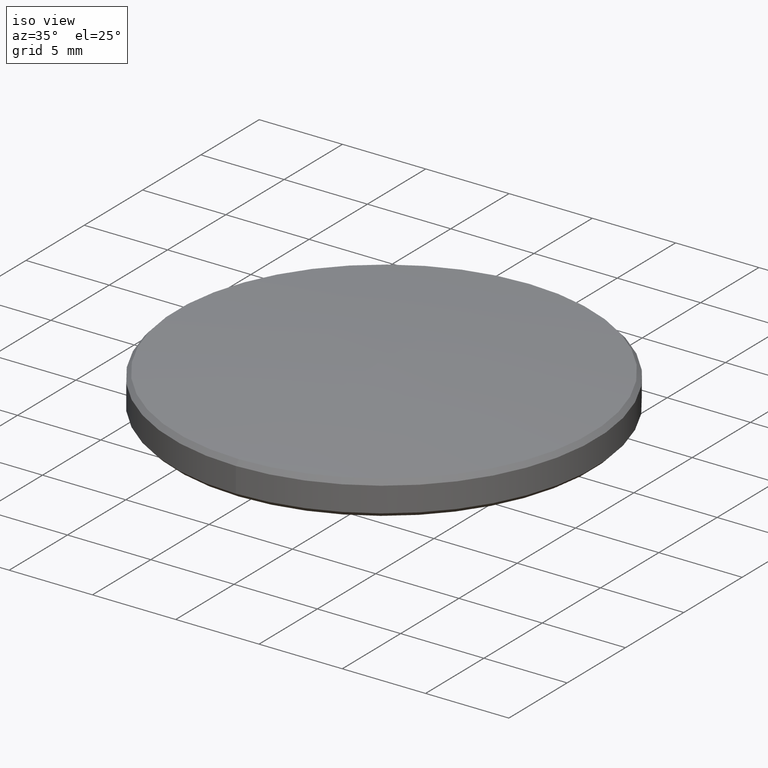
[diagram: clean part render]
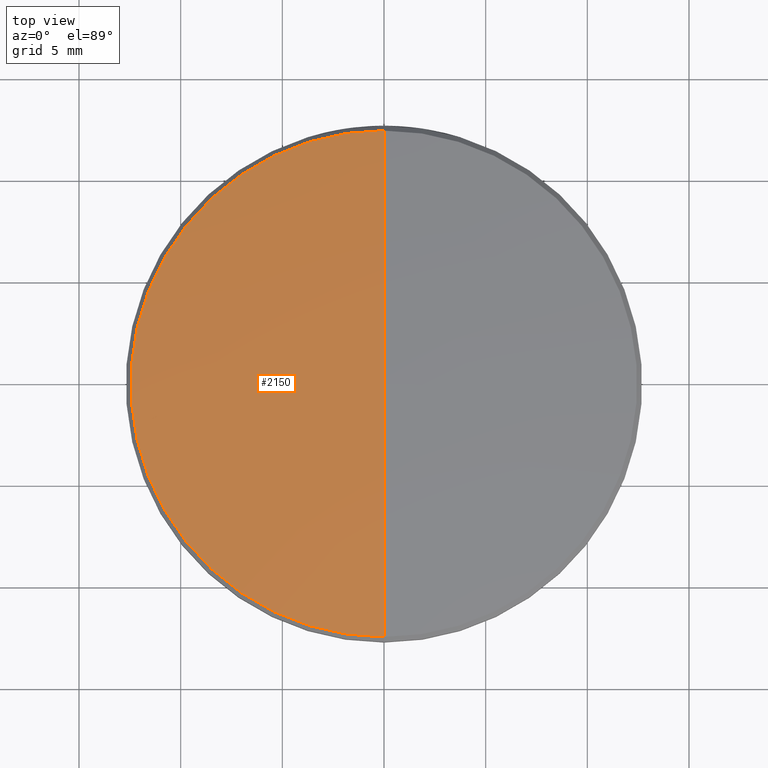
[diagram: tour spotlight — one face highlighted and labeled with its STEP entity id]
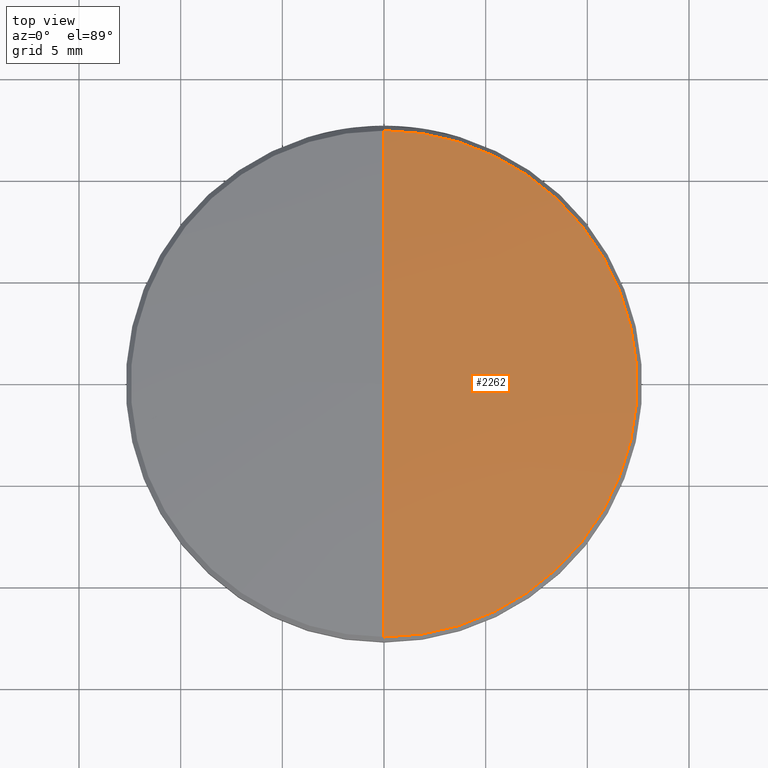
[diagram: tour spotlight — one face highlighted and labeled with its STEP entity id]
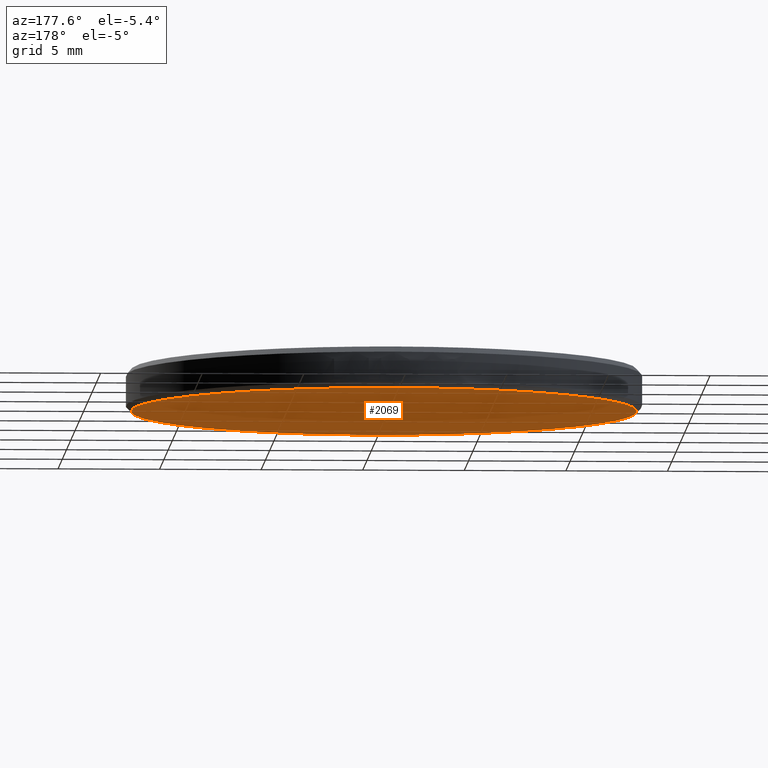
[diagram: tour spotlight — one face highlighted and labeled with its STEP entity id]
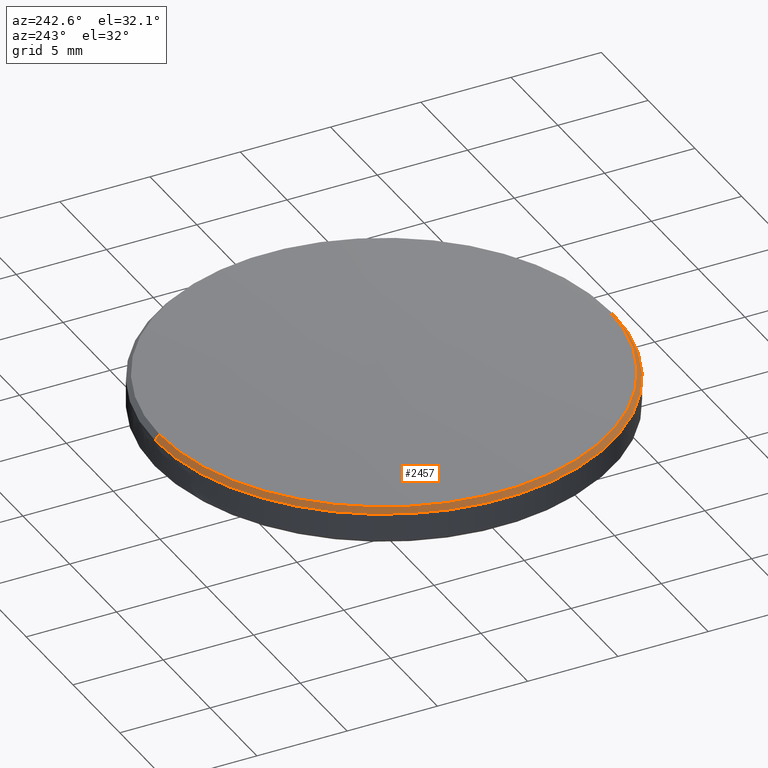
[diagram: tour spotlight — one face highlighted and labeled with its STEP entity id]
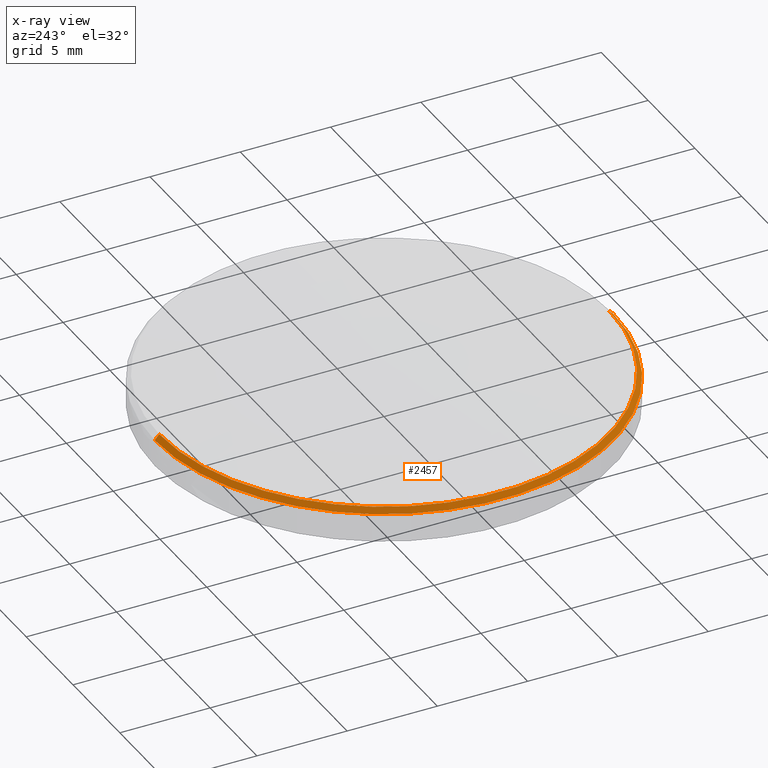
[diagram: x-ray of the same camera — body ghosted, this tour face saturated]
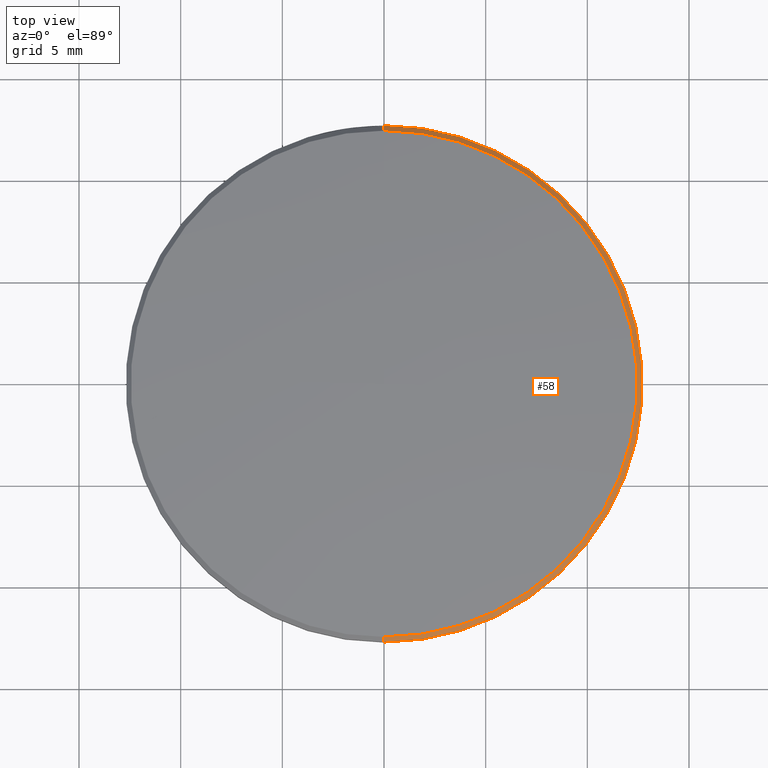
[diagram: tour spotlight — one face highlighted and labeled with its STEP entity id]
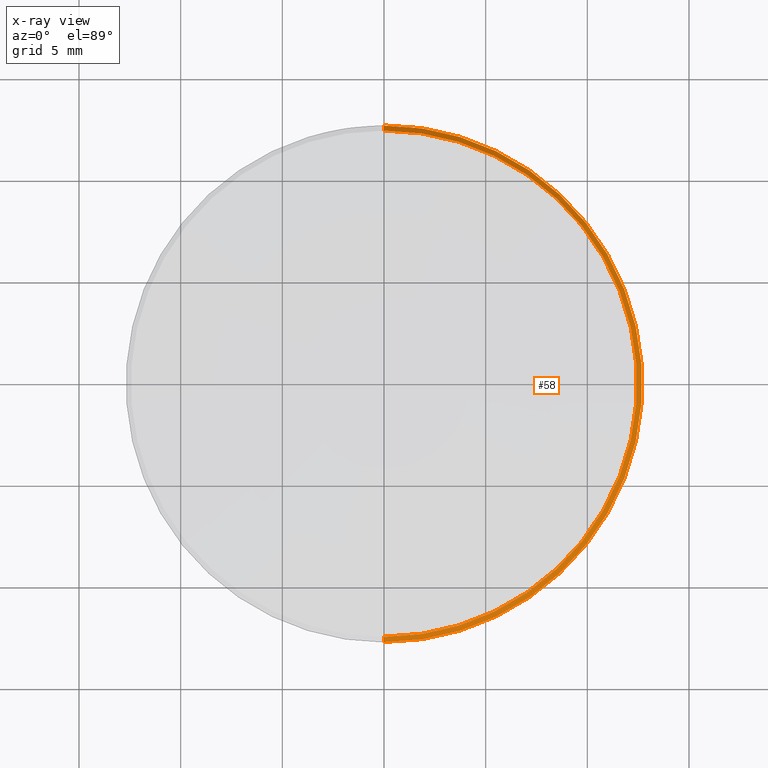
[diagram: x-ray of the same camera — body ghosted, this tour face saturated]
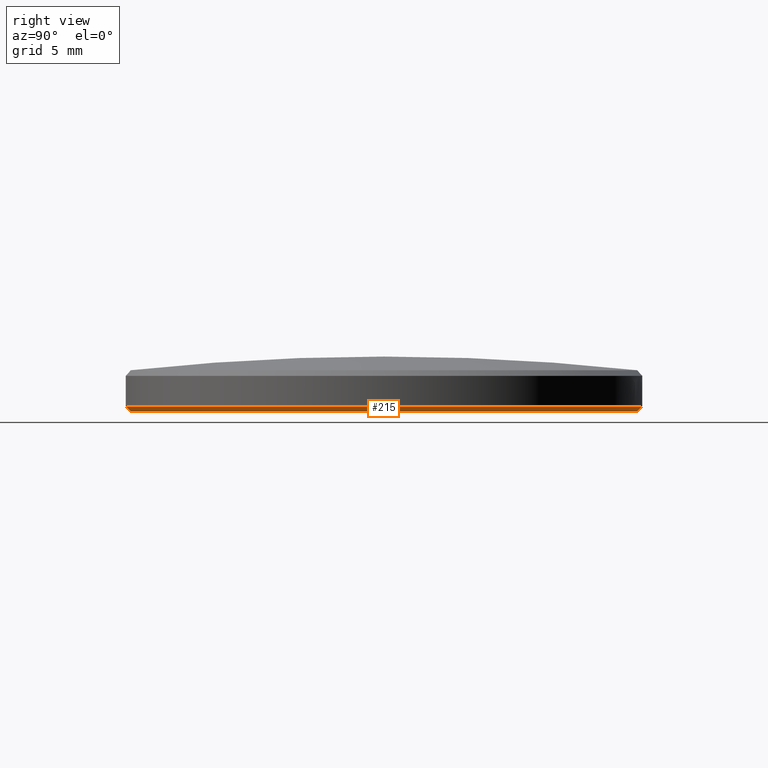
[diagram: tour spotlight — one face highlighted and labeled with its STEP entity id]
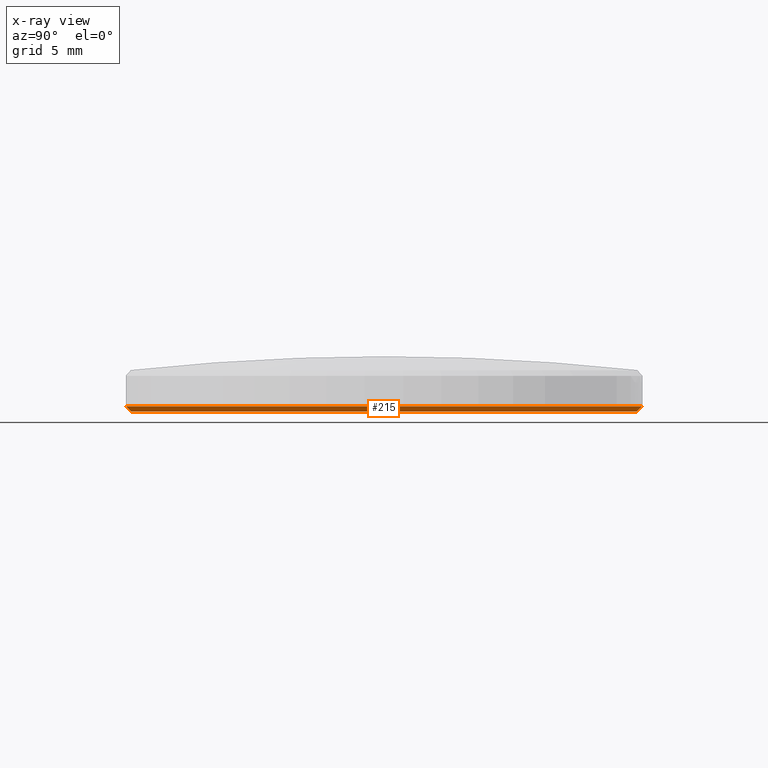
[diagram: x-ray of the same camera — body ghosted, this tour face saturated]
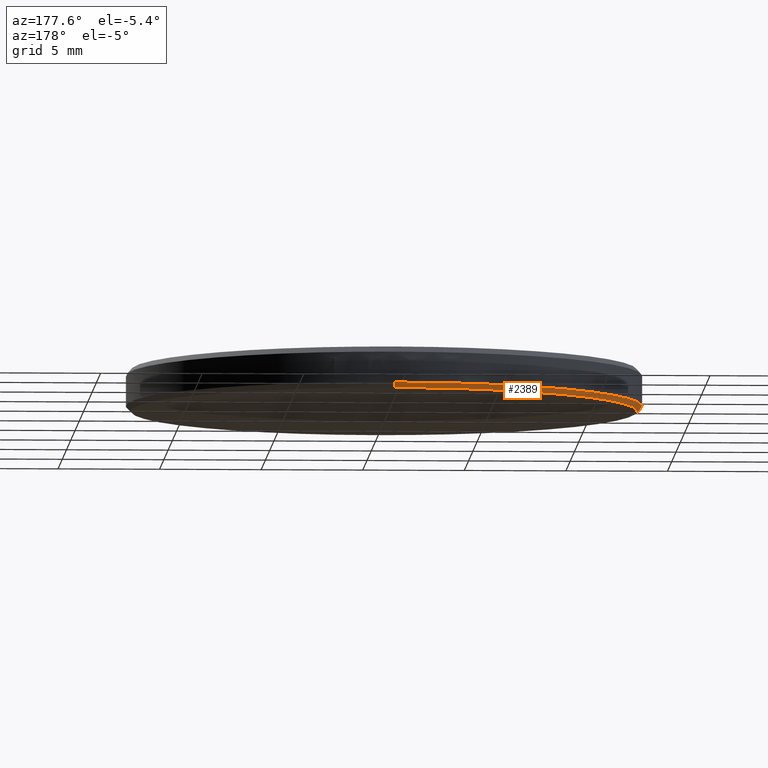
[diagram: tour spotlight — one face highlighted and labeled with its STEP entity id]
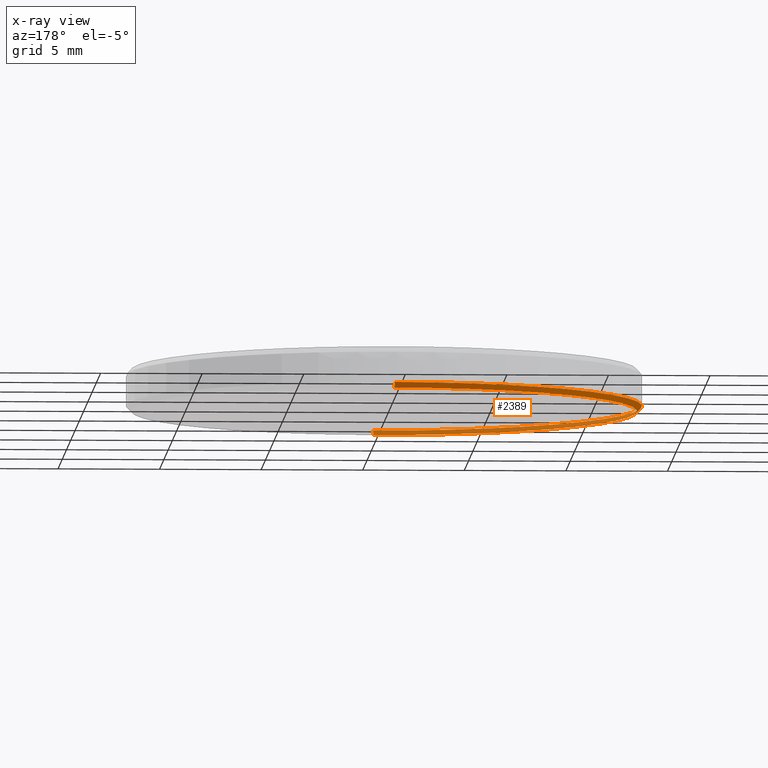
[diagram: x-ray of the same camera — body ghosted, this tour face saturated]
A machine part: a face-by-face anatomy tour. The part has 29 B-rep faces; the first image is the clean iso view, then the 7 largest visible faces are spotlighted one at a time (largest first), each with its STEP entity span.

Face 1 — top view, entity #2150. In plain terms, the highlighted toroidal blend (fillet) surface has major radius 0.0296 mm and minor (blend) radius 115.02 mm.
Definition (entity closure, byte-faithful):
#20 = ORIENTED_EDGE ( 'NONE', *, *, #2110, .T. ) ;
#64 = ORIENTED_EDGE ( 'NONE', *, *, #2022, .T. ) ;
#70 = DIRECTION ( 'NONE',  ( 0.0000000000000000000, 1.000000000000000000, 1.393151607330637602E-16 ) ) ;
#186 = DIRECTION ( 'NONE',  ( 1.000000000000000000, 1.224646799147353207E-16, 1.499759782661857882E-32 ) ) ;
#262 = TOROIDAL_SURFACE ( 'NONE', #2390, 0.02960650923486853395, 115.0199999999999534 ) ;
#354 = VERTEX_POINT ( 'NONE', #1911 ) ;
#509 = AXIS2_PLACEMENT_3D ( 'NONE', #1966, #2160, #798 ) ;
#636 = DIRECTION ( 'NONE',  ( -0.0000000000000000000, 1.224646799147353454E-16, -1.000000000000000000 ) ) ;
#798 = DIRECTION ( 'NONE',  ( 0.0000000000000000000, 0.0000000000000000000, 1.000000000000000000 ) ) ;
#873 = DIRECTION ( 'NONE',  ( 0.0000000000000000000, -1.224646799147352961E-16, 1.000000000000000000 ) ) ;
#904 = CARTESIAN_POINT ( 'NONE',  ( 0.0000000000000000000, -3.306546357697853733E-16, 2.700000000000000178 ) ) ;
#929 = EDGE_LOOP ( 'NONE', ( #2419, #64, #20 ) ) ;
#1053 = CARTESIAN_POINT ( 'NONE',  ( 1.524904785008510147E-15, -12.45179251740345272, 2.027236810501215736 ) ) ;
#1082 = EDGE_CURVE ( 'NONE', #1412, #2109, #2178, .T. ) ;
#1267 = CIRCLE ( 'NONE', #509, 115.0199999999999534 ) ;
#1360 = AXIS2_PLACEMENT_3D ( 'NONE', #2036, #873, #70 ) ;
#1412 = VERTEX_POINT ( 'NONE', #904 ) ;
#1420 = AXIS2_PLACEMENT_3D ( 'NONE', #1591, #186, #1584 ) ;
#1481 = FACE_OUTER_BOUND ( 'NONE', #929, .T. ) ;
#1584 = DIRECTION ( 'NONE',  ( -1.224646799147353207E-16, 1.000000000000000000, 0.0000000000000000000 ) ) ;
#1591 = CARTESIAN_POINT ( 'NONE',  ( 3.625751676840830550E-18, -0.02960650923485477759, -112.3199961895956847 ) ) ;
#1624 = DIRECTION ( 'NONE',  ( 0.0000000000000000000, 1.000000000000000000, 1.224646799147353454E-16 ) ) ;
#1911 = CARTESIAN_POINT ( 'NONE',  ( 0.0000000000000000000, 12.45179251740345272, 2.027236810501217512 ) ) ;
#1966 = CARTESIAN_POINT ( 'NONE',  ( 0.0000000000000000000, 0.02960650923488229030, -112.3199961895956847 ) ) ;
#2022 = EDGE_CURVE ( 'NONE', #1412, #354, #1267, .T. ) ;
#2036 = CARTESIAN_POINT ( 'NONE',  ( 0.0000000000000000000, -2.476822250826854983E-16, 2.027236810501209519 ) ) ;
#2109 = VERTEX_POINT ( 'NONE', #1053 ) ;
#2110 = EDGE_CURVE ( 'NONE', #354, #2109, #2472, .T. ) ;
#2150 = ADVANCED_FACE ( 'NONE', ( #1481 ), #262, .T. ) ;
#2160 = DIRECTION ( 'NONE',  ( -1.000000000000000000, 0.0000000000000000000, 0.0000000000000000000 ) ) ;
#2178 = CIRCLE ( 'NONE', #1420, 115.0199999999999534 ) ;
#2187 = CARTESIAN_POINT ( 'NONE',  ( 0.0000000000000000000, 1.375581506340983751E-14, -112.3199961895956847 ) ) ;
#2390 = AXIS2_PLACEMENT_3D ( 'NONE', #2187, #636, #1624 ) ;
#2419 = ORIENTED_EDGE ( 'NONE', *, *, #1082, .F. ) ;
#2472 = CIRCLE ( 'NONE', #1360, 12.45179251740334081 ) ;

Face 2 — top view, entity #2262. In plain terms, the highlighted toroidal blend (fillet) surface has major radius 0.0296 mm and minor (blend) radius 115.02 mm.
Definition (entity closure, byte-faithful):
#186 = DIRECTION ( 'NONE',  ( 1.000000000000000000, 1.224646799147353207E-16, 1.499759782661857882E-32 ) ) ;
#322 = EDGE_LOOP ( 'NONE', ( #2195, #1941, #2237 ) ) ;
#354 = VERTEX_POINT ( 'NONE', #1911 ) ;
#370 = DIRECTION ( 'NONE',  ( 0.0000000000000000000, -1.224646799147352961E-16, 1.000000000000000000 ) ) ;
#509 = AXIS2_PLACEMENT_3D ( 'NONE', #1966, #2160, #798 ) ;
#798 = DIRECTION ( 'NONE',  ( 0.0000000000000000000, 0.0000000000000000000, 1.000000000000000000 ) ) ;
#904 = CARTESIAN_POINT ( 'NONE',  ( 0.0000000000000000000, -3.306546357697853733E-16, 2.700000000000000178 ) ) ;
#955 = AXIS2_PLACEMENT_3D ( 'NONE', #1943, #370, #1359 ) ;
#1053 = CARTESIAN_POINT ( 'NONE',  ( 1.524904785008510147E-15, -12.45179251740345272, 2.027236810501215736 ) ) ;
#1082 = EDGE_CURVE ( 'NONE', #1412, #2109, #2178, .T. ) ;
#1191 = FACE_OUTER_BOUND ( 'NONE', #322, .T. ) ;
#1267 = CIRCLE ( 'NONE', #509, 115.0199999999999534 ) ;
#1314 = DIRECTION ( 'NONE',  ( 0.0000000000000000000, 1.000000000000000000, 1.224646799147353454E-16 ) ) ;
#1359 = DIRECTION ( 'NONE',  ( 0.0000000000000000000, 1.000000000000000000, 1.393151607330637602E-16 ) ) ;
#1412 = VERTEX_POINT ( 'NONE', #904 ) ;
#1420 = AXIS2_PLACEMENT_3D ( 'NONE', #1591, #186, #1584 ) ;
#1500 = CARTESIAN_POINT ( 'NONE',  ( 0.0000000000000000000, 1.375581506340983751E-14, -112.3199961895956847 ) ) ;
#1584 = DIRECTION ( 'NONE',  ( -1.224646799147353207E-16, 1.000000000000000000, 0.0000000000000000000 ) ) ;
#1591 = CARTESIAN_POINT ( 'NONE',  ( 3.625751676840830550E-18, -0.02960650923485477759, -112.3199961895956847 ) ) ;
#1911 = CARTESIAN_POINT ( 'NONE',  ( 0.0000000000000000000, 12.45179251740345272, 2.027236810501217512 ) ) ;
#1914 = AXIS2_PLACEMENT_3D ( 'NONE', #1500, #2047, #1314 ) ;
#1941 = ORIENTED_EDGE ( 'NONE', *, *, #1082, .T. ) ;
#1943 = CARTESIAN_POINT ( 'NONE',  ( 0.0000000000000000000, -2.476822250826854983E-16, 2.027236810501209519 ) ) ;
#1945 = TOROIDAL_SURFACE ( 'NONE', #1914, 0.02960650923486853395, 115.0199999999999534 ) ;
#1966 = CARTESIAN_POINT ( 'NONE',  ( 0.0000000000000000000, 0.02960650923488229030, -112.3199961895956847 ) ) ;
#2022 = EDGE_CURVE ( 'NONE', #1412, #354, #1267, .T. ) ;
#2047 = DIRECTION ( 'NONE',  ( -0.0000000000000000000, 1.224646799147353454E-16, -1.000000000000000000 ) ) ;
#2109 = VERTEX_POINT ( 'NONE', #1053 ) ;
#2160 = DIRECTION ( 'NONE',  ( -1.000000000000000000, 0.0000000000000000000, 0.0000000000000000000 ) ) ;
#2178 = CIRCLE ( 'NONE', #1420, 115.0199999999999534 ) ;
#2195 = ORIENTED_EDGE ( 'NONE', *, *, #2022, .F. ) ;
#2237 = ORIENTED_EDGE ( 'NONE', *, *, #2462, .T. ) ;
#2262 = ADVANCED_FACE ( 'NONE', ( #1191 ), #1945, .T. ) ;
#2284 = CIRCLE ( 'NONE', #955, 12.45179251740334081 ) ;
#2462 = EDGE_CURVE ( 'NONE', #2109, #354, #2284, .T. ) ;

Face 3 — auxiliary view, entity #2069. In plain terms, the highlighted planar face has unit normal (0, 0, -1).
Definition (entity closure, byte-faithful):
#8 = EDGE_CURVE ( 'NONE', #635, #1193, #1623, .T. ) ;
#204 = CARTESIAN_POINT ( 'NONE',  ( 0.0000000000000000000, 12.69999999999999929, 7.776507174585694135E-16 ) ) ;
#270 = DIRECTION ( 'NONE',  ( 0.0000000000000000000, 1.000000000000000000, 1.224646799147353454E-16 ) ) ;
#314 = CARTESIAN_POINT ( 'NONE',  ( 0.0000000000000000000, 9.523474619902799641E-32, -7.776507174585694135E-16 ) ) ;
#507 = EDGE_LOOP ( 'NONE', ( #919, #829 ) ) ;
#635 = VERTEX_POINT ( 'NONE', #1019 ) ;
#643 = AXIS2_PLACEMENT_3D ( 'NONE', #204, #1985, #1799 ) ;
#721 = DIRECTION ( 'NONE',  ( 0.0000000000000000000, 1.000000000000000000, 1.224646799147353454E-16 ) ) ;
#788 = PLANE ( 'NONE',  #643 ) ;
#829 = ORIENTED_EDGE ( 'NONE', *, *, #2080, .T. ) ;
#919 = ORIENTED_EDGE ( 'NONE', *, *, #8, .T. ) ;
#937 = DIRECTION ( 'NONE',  ( -0.0000000000000000000, 1.224646799147353454E-16, -1.000000000000000000 ) ) ;
#1019 = CARTESIAN_POINT ( 'NONE',  ( 0.0000000000000000000, -12.44999999999999751, -2.302335982397023862E-15 ) ) ;
#1193 = VERTEX_POINT ( 'NONE', #1610 ) ;
#1280 = CARTESIAN_POINT ( 'NONE',  ( 0.0000000000000000000, 9.523474619902799641E-32, -7.776507174585694135E-16 ) ) ;
#1536 = CIRCLE ( 'NONE', #1844, 12.44999999999999751 ) ;
#1566 = FACE_OUTER_BOUND ( 'NONE', #507, .T. ) ;
#1610 = CARTESIAN_POINT ( 'NONE',  ( 1.539993349927796342E-15, 12.44999999999999751, 7.470345474798853307E-16 ) ) ;
#1623 = CIRCLE ( 'NONE', #2106, 12.44999999999999751 ) ;
#1799 = DIRECTION ( 'NONE',  ( 0.0000000000000000000, 1.000000000000000000, 1.224646799147353454E-16 ) ) ;
#1844 = AXIS2_PLACEMENT_3D ( 'NONE', #1280, #2431, #270 ) ;
#1985 = DIRECTION ( 'NONE',  ( -0.0000000000000000000, 1.224646799147353454E-16, -1.000000000000000000 ) ) ;
#2069 = ADVANCED_FACE ( 'NONE', ( #1566 ), #788, .T. ) ;
#2080 = EDGE_CURVE ( 'NONE', #1193, #635, #1536, .T. ) ;
#2106 = AXIS2_PLACEMENT_3D ( 'NONE', #314, #937, #721 ) ;
#2431 = DIRECTION ( 'NONE',  ( -0.0000000000000000000, 1.224646799147353454E-16, -1.000000000000000000 ) ) ;

Face 4 — auxiliary view, entity #2457. An x-ray twin of the same camera follows (body ghosted, this face saturated) — the face is partly hidden behind the body. In plain terms, the highlighted conical surface has half-angle 41.838 deg.
Definition (entity closure, byte-faithful):
#30 = AXIS2_PLACEMENT_3D ( 'NONE', #762, #2536, #1373 ) ;
#70 = DIRECTION ( 'NONE',  ( 0.0000000000000000000, 1.000000000000000000, 1.393151607330637602E-16 ) ) ;
#182 = CARTESIAN_POINT ( 'NONE',  ( 0.0000000000000000000, -2.143131898507836496E-16, 1.749999999999973799 ) ) ;
#354 = VERTEX_POINT ( 'NONE', #1911 ) ;
#380 = VECTOR ( 'NONE', #659, 999.9999999999998863 ) ;
#570 = LINE ( 'NONE', #1838, #380 ) ;
#659 = DIRECTION ( 'NONE',  ( 0.0000000000000000000, 0.6670239213257060928, -0.7450363000413323666 ) ) ;
#685 = EDGE_CURVE ( 'NONE', #354, #2350, #570, .T. ) ;
#762 = CARTESIAN_POINT ( 'NONE',  ( 0.0000000000000000000, -2.137305078240753814E-16, 1.749999999999973799 ) ) ;
#869 = ORIENTED_EDGE ( 'NONE', *, *, #1378, .F. ) ;
#873 = DIRECTION ( 'NONE',  ( 0.0000000000000000000, -1.224646799147352961E-16, 1.000000000000000000 ) ) ;
#924 = CARTESIAN_POINT ( 'NONE',  ( 0.0000000000000000000, 12.69999999999999751, 1.749999999999975353 ) ) ;
#1046 = FACE_OUTER_BOUND ( 'NONE', #1971, .T. ) ;
#1053 = CARTESIAN_POINT ( 'NONE',  ( 1.524904785008510147E-15, -12.45179251740345272, 2.027236810501215736 ) ) ;
#1059 = CARTESIAN_POINT ( 'NONE',  ( 1.555301434917138235E-15, -12.69999999999999751, 1.749999999999972244 ) ) ;
#1104 = LINE ( 'NONE', #1059, #2215 ) ;
#1162 = DIRECTION ( 'NONE',  ( 0.0000000000000000000, -1.000000000000000000, -1.195183497228115281E-16 ) ) ;
#1291 = DIRECTION ( 'NONE',  ( 8.168687102062419492E-17, -0.6670239213257058708, -0.7450363000413325887 ) ) ;
#1360 = AXIS2_PLACEMENT_3D ( 'NONE', #2036, #873, #70 ) ;
#1373 = DIRECTION ( 'NONE',  ( 0.0000000000000000000, 1.000000000000000000, 1.195183497228115281E-16 ) ) ;
#1378 = EDGE_CURVE ( 'NONE', #2109, #2353, #1104, .T. ) ;
#1599 = CIRCLE ( 'NONE', #1709, 12.69999999999999751 ) ;
#1611 = ORIENTED_EDGE ( 'NONE', *, *, #2504, .F. ) ;
#1687 = CONICAL_SURFACE ( 'NONE', #30, 12.69999999999999751, 0.7302070664520255994 ) ;
#1709 = AXIS2_PLACEMENT_3D ( 'NONE', #182, #2118, #1162 ) ;
#1722 = CARTESIAN_POINT ( 'NONE',  ( 1.555301434917138235E-15, -12.69999999999999751, 1.749999999999972244 ) ) ;
#1773 = ORIENTED_EDGE ( 'NONE', *, *, #685, .T. ) ;
#1838 = CARTESIAN_POINT ( 'NONE',  ( 0.0000000000000000000, 12.69999999999999751, 1.749999999999975353 ) ) ;
#1911 = CARTESIAN_POINT ( 'NONE',  ( 0.0000000000000000000, 12.45179251740345272, 2.027236810501217512 ) ) ;
#1971 = EDGE_LOOP ( 'NONE', ( #869, #2282, #1773, #1611 ) ) ;
#2036 = CARTESIAN_POINT ( 'NONE',  ( 0.0000000000000000000, -2.476822250826854983E-16, 2.027236810501209519 ) ) ;
#2109 = VERTEX_POINT ( 'NONE', #1053 ) ;
#2110 = EDGE_CURVE ( 'NONE', #354, #2109, #2472, .T. ) ;
#2118 = DIRECTION ( 'NONE',  ( -0.0000000000000000000, 1.224646799147352961E-16, -1.000000000000000000 ) ) ;
#2215 = VECTOR ( 'NONE', #1291, 999.9999999999998863 ) ;
#2282 = ORIENTED_EDGE ( 'NONE', *, *, #2110, .F. ) ;
#2350 = VERTEX_POINT ( 'NONE', #924 ) ;
#2353 = VERTEX_POINT ( 'NONE', #1722 ) ;
#2457 = ADVANCED_FACE ( 'NONE', ( #1046 ), #1687, .T. ) ;
#2472 = CIRCLE ( 'NONE', #1360, 12.45179251740334081 ) ;
#2504 = EDGE_CURVE ( 'NONE', #2353, #2350, #1599, .T. ) ;
#2536 = DIRECTION ( 'NONE',  ( -0.0000000000000000000, 1.224646799147352961E-16, -1.000000000000000000 ) ) ;

Face 5 — top view, entity #58. An x-ray twin of the same camera follows (body ghosted, this face saturated) — the face is partly hidden behind the body. In plain terms, the highlighted conical surface has half-angle 41.838 deg.
Definition (entity closure, byte-faithful):
#31 = EDGE_CURVE ( 'NONE', #2350, #2353, #565, .T. ) ;
#58 = ADVANCED_FACE ( 'NONE', ( #161 ), #1222, .T. ) ;
#122 = DIRECTION ( 'NONE',  ( 0.0000000000000000000, -1.000000000000000000, -1.195183497228115281E-16 ) ) ;
#161 = FACE_OUTER_BOUND ( 'NONE', #1164, .T. ) ;
#353 = DIRECTION ( 'NONE',  ( 0.0000000000000000000, 1.000000000000000000, 1.195183497228115281E-16 ) ) ;
#354 = VERTEX_POINT ( 'NONE', #1911 ) ;
#370 = DIRECTION ( 'NONE',  ( 0.0000000000000000000, -1.224646799147352961E-16, 1.000000000000000000 ) ) ;
#380 = VECTOR ( 'NONE', #659, 999.9999999999998863 ) ;
#494 = AXIS2_PLACEMENT_3D ( 'NONE', #513, #1704, #353 ) ;
#513 = CARTESIAN_POINT ( 'NONE',  ( 0.0000000000000000000, -2.137305078240753814E-16, 1.749999999999973799 ) ) ;
#565 = CIRCLE ( 'NONE', #2242, 12.69999999999999751 ) ;
#570 = LINE ( 'NONE', #1838, #380 ) ;
#659 = DIRECTION ( 'NONE',  ( 0.0000000000000000000, 0.6670239213257060928, -0.7450363000413323666 ) ) ;
#685 = EDGE_CURVE ( 'NONE', #354, #2350, #570, .T. ) ;
#924 = CARTESIAN_POINT ( 'NONE',  ( 0.0000000000000000000, 12.69999999999999751, 1.749999999999975353 ) ) ;
#955 = AXIS2_PLACEMENT_3D ( 'NONE', #1943, #370, #1359 ) ;
#1012 = ORIENTED_EDGE ( 'NONE', *, *, #685, .F. ) ;
#1053 = CARTESIAN_POINT ( 'NONE',  ( 1.524904785008510147E-15, -12.45179251740345272, 2.027236810501215736 ) ) ;
#1059 = CARTESIAN_POINT ( 'NONE',  ( 1.555301434917138235E-15, -12.69999999999999751, 1.749999999999972244 ) ) ;
#1104 = LINE ( 'NONE', #1059, #2215 ) ;
#1164 = EDGE_LOOP ( 'NONE', ( #1243, #1665, #2104, #1012 ) ) ;
#1222 = CONICAL_SURFACE ( 'NONE', #494, 12.69999999999999751, 0.7302070664520255994 ) ;
#1243 = ORIENTED_EDGE ( 'NONE', *, *, #2462, .F. ) ;
#1291 = DIRECTION ( 'NONE',  ( 8.168687102062419492E-17, -0.6670239213257058708, -0.7450363000413325887 ) ) ;
#1329 = DIRECTION ( 'NONE',  ( -0.0000000000000000000, 1.224646799147352961E-16, -1.000000000000000000 ) ) ;
#1359 = DIRECTION ( 'NONE',  ( 0.0000000000000000000, 1.000000000000000000, 1.393151607330637602E-16 ) ) ;
#1378 = EDGE_CURVE ( 'NONE', #2109, #2353, #1104, .T. ) ;
#1665 = ORIENTED_EDGE ( 'NONE', *, *, #1378, .T. ) ;
#1704 = DIRECTION ( 'NONE',  ( -0.0000000000000000000, 1.224646799147352961E-16, -1.000000000000000000 ) ) ;
#1722 = CARTESIAN_POINT ( 'NONE',  ( 1.555301434917138235E-15, -12.69999999999999751, 1.749999999999972244 ) ) ;
#1838 = CARTESIAN_POINT ( 'NONE',  ( 0.0000000000000000000, 12.69999999999999751, 1.749999999999975353 ) ) ;
#1883 = CARTESIAN_POINT ( 'NONE',  ( 0.0000000000000000000, -2.143131898507836496E-16, 1.749999999999973799 ) ) ;
#1911 = CARTESIAN_POINT ( 'NONE',  ( 0.0000000000000000000, 12.45179251740345272, 2.027236810501217512 ) ) ;
#1943 = CARTESIAN_POINT ( 'NONE',  ( 0.0000000000000000000, -2.476822250826854983E-16, 2.027236810501209519 ) ) ;
#2104 = ORIENTED_EDGE ( 'NONE', *, *, #31, .F. ) ;
#2109 = VERTEX_POINT ( 'NONE', #1053 ) ;
#2215 = VECTOR ( 'NONE', #1291, 999.9999999999998863 ) ;
#2242 = AXIS2_PLACEMENT_3D ( 'NONE', #1883, #1329, #122 ) ;
#2284 = CIRCLE ( 'NONE', #955, 12.45179251740334081 ) ;
#2350 = VERTEX_POINT ( 'NONE', #924 ) ;
#2353 = VERTEX_POINT ( 'NONE', #1722 ) ;
#2462 = EDGE_CURVE ( 'NONE', #2109, #354, #2284, .T. ) ;

Face 6 — right view, entity #215. An x-ray twin of the same camera follows (body ghosted, this face saturated) — the face is partly hidden behind the body. In plain terms, the highlighted conical surface has half-angle 45 deg.
Definition (entity closure, byte-faithful):
#124 = DIRECTION ( 'NONE',  ( 0.0000000000000000000, -1.224646799147353700E-16, 1.000000000000000000 ) ) ;
#215 = ADVANCED_FACE ( 'NONE', ( #2400 ), #1492, .T. ) ;
#261 = CARTESIAN_POINT ( 'NONE',  ( 0.0000000000000000000, 12.69999999999999751, 0.2499999999999975575 ) ) ;
#270 = DIRECTION ( 'NONE',  ( 0.0000000000000000000, 1.000000000000000000, 1.224646799147353454E-16 ) ) ;
#459 = CARTESIAN_POINT ( 'NONE',  ( 0.0000000000000000000, 9.523474619902799641E-32, -7.776507174585694135E-16 ) ) ;
#594 = ORIENTED_EDGE ( 'NONE', *, *, #2080, .F. ) ;
#635 = VERTEX_POINT ( 'NONE', #1019 ) ;
#686 = VERTEX_POINT ( 'NONE', #261 ) ;
#687 = DIRECTION ( 'NONE',  ( 8.659560562354993255E-17, 0.7071067811865523467, 0.7071067811865426878 ) ) ;
#724 = EDGE_CURVE ( 'NONE', #1193, #686, #1328, .T. ) ;
#818 = VECTOR ( 'NONE', #687, 1000.000000000000000 ) ;
#844 = CARTESIAN_POINT ( 'NONE',  ( 1.524685264938454448E-15, 12.44999999999999751, 7.470345474798857251E-16 ) ) ;
#992 = DIRECTION ( 'NONE',  ( 0.0000000000000000000, -0.7071067811865526798, 0.7071067811865424657 ) ) ;
#1019 = CARTESIAN_POINT ( 'NONE',  ( 0.0000000000000000000, -12.44999999999999751, -2.302335982397023862E-15 ) ) ;
#1125 = CARTESIAN_POINT ( 'NONE',  ( 0.0000000000000000000, -3.061616997868334947E-17, 0.2499999999999960032 ) ) ;
#1193 = VERTEX_POINT ( 'NONE', #1610 ) ;
#1280 = CARTESIAN_POINT ( 'NONE',  ( 0.0000000000000000000, 9.523474619902799641E-32, -7.776507174585694135E-16 ) ) ;
#1328 = LINE ( 'NONE', #844, #818 ) ;
#1351 = DIRECTION ( 'NONE',  ( 0.0000000000000000000, 1.000000000000000000, 1.237868622129119548E-16 ) ) ;
#1450 = CIRCLE ( 'NONE', #2303, 12.69999999999999751 ) ;
#1492 = CONICAL_SURFACE ( 'NONE', #1753, 12.44999999999999751, 0.7853981633974552734 ) ;
#1511 = ORIENTED_EDGE ( 'NONE', *, *, #1932, .F. ) ;
#1530 = VERTEX_POINT ( 'NONE', #1908 ) ;
#1536 = CIRCLE ( 'NONE', #1844, 12.44999999999999751 ) ;
#1610 = CARTESIAN_POINT ( 'NONE',  ( 1.539993349927796342E-15, 12.44999999999999751, 7.470345474798853307E-16 ) ) ;
#1723 = ORIENTED_EDGE ( 'NONE', *, *, #724, .T. ) ;
#1753 = AXIS2_PLACEMENT_3D ( 'NONE', #459, #1803, #2179 ) ;
#1764 = LINE ( 'NONE', #2204, #1834 ) ;
#1798 = EDGE_LOOP ( 'NONE', ( #594, #1723, #2177, #1511 ) ) ;
#1803 = DIRECTION ( 'NONE',  ( 0.0000000000000000000, -1.224646799147353700E-16, 1.000000000000000000 ) ) ;
#1834 = VECTOR ( 'NONE', #992, 999.9999999999998863 ) ;
#1844 = AXIS2_PLACEMENT_3D ( 'NONE', #1280, #2431, #270 ) ;
#1908 = CARTESIAN_POINT ( 'NONE',  ( 1.555301434917138235E-15, -12.69999999999999751, 0.2499999999999944211 ) ) ;
#1932 = EDGE_CURVE ( 'NONE', #635, #1530, #1764, .T. ) ;
#2080 = EDGE_CURVE ( 'NONE', #1193, #635, #1536, .T. ) ;
#2177 = ORIENTED_EDGE ( 'NONE', *, *, #2329, .F. ) ;
#2179 = DIRECTION ( 'NONE',  ( 0.0000000000000000000, -1.000000000000000000, -1.224646799147353947E-16 ) ) ;
#2204 = CARTESIAN_POINT ( 'NONE',  ( 0.0000000000000000000, -12.44999999999999751, -2.302335982397024651E-15 ) ) ;
#2303 = AXIS2_PLACEMENT_3D ( 'NONE', #1125, #124, #1351 ) ;
#2329 = EDGE_CURVE ( 'NONE', #1530, #686, #1450, .T. ) ;
#2400 = FACE_OUTER_BOUND ( 'NONE', #1798, .T. ) ;
#2431 = DIRECTION ( 'NONE',  ( -0.0000000000000000000, 1.224646799147353454E-16, -1.000000000000000000 ) ) ;

Face 7 — auxiliary view, entity #2389. An x-ray twin of the same camera follows (body ghosted, this face saturated) — the face is partly hidden behind the body. In plain terms, the highlighted conical surface has half-angle 45 deg.
Definition (entity closure, byte-faithful):
#8 = EDGE_CURVE ( 'NONE', #635, #1193, #1623, .T. ) ;
#167 = FACE_OUTER_BOUND ( 'NONE', #1366, .T. ) ;
#261 = CARTESIAN_POINT ( 'NONE',  ( 0.0000000000000000000, 12.69999999999999751, 0.2499999999999975575 ) ) ;
#314 = CARTESIAN_POINT ( 'NONE',  ( 0.0000000000000000000, 9.523474619902799641E-32, -7.776507174585694135E-16 ) ) ;
#316 = DIRECTION ( 'NONE',  ( 0.0000000000000000000, 1.000000000000000000, 1.237868622129119548E-16 ) ) ;
#327 = CONICAL_SURFACE ( 'NONE', #768, 12.44999999999999751, 0.7853981633974552734 ) ;
#340 = DIRECTION ( 'NONE',  ( 0.0000000000000000000, -1.000000000000000000, -1.224646799147353947E-16 ) ) ;
#635 = VERTEX_POINT ( 'NONE', #1019 ) ;
#686 = VERTEX_POINT ( 'NONE', #261 ) ;
#687 = DIRECTION ( 'NONE',  ( 8.659560562354993255E-17, 0.7071067811865523467, 0.7071067811865426878 ) ) ;
#721 = DIRECTION ( 'NONE',  ( 0.0000000000000000000, 1.000000000000000000, 1.224646799147353454E-16 ) ) ;
#724 = EDGE_CURVE ( 'NONE', #1193, #686, #1328, .T. ) ;
#768 = AXIS2_PLACEMENT_3D ( 'NONE', #1528, #2098, #340 ) ;
#818 = VECTOR ( 'NONE', #687, 1000.000000000000000 ) ;
#844 = CARTESIAN_POINT ( 'NONE',  ( 1.524685264938454448E-15, 12.44999999999999751, 7.470345474798857251E-16 ) ) ;
#926 = ORIENTED_EDGE ( 'NONE', *, *, #1932, .T. ) ;
#937 = DIRECTION ( 'NONE',  ( -0.0000000000000000000, 1.224646799147353454E-16, -1.000000000000000000 ) ) ;
#992 = DIRECTION ( 'NONE',  ( 0.0000000000000000000, -0.7071067811865526798, 0.7071067811865424657 ) ) ;
#1016 = CIRCLE ( 'NONE', #1786, 12.69999999999999751 ) ;
#1019 = CARTESIAN_POINT ( 'NONE',  ( 0.0000000000000000000, -12.44999999999999751, -2.302335982397023862E-15 ) ) ;
#1088 = ORIENTED_EDGE ( 'NONE', *, *, #724, .F. ) ;
#1127 = DIRECTION ( 'NONE',  ( 0.0000000000000000000, -1.224646799147353700E-16, 1.000000000000000000 ) ) ;
#1193 = VERTEX_POINT ( 'NONE', #1610 ) ;
#1328 = LINE ( 'NONE', #844, #818 ) ;
#1366 = EDGE_LOOP ( 'NONE', ( #1088, #1518, #926, #1597 ) ) ;
#1518 = ORIENTED_EDGE ( 'NONE', *, *, #8, .F. ) ;
#1528 = CARTESIAN_POINT ( 'NONE',  ( 0.0000000000000000000, 9.523474619902799641E-32, -7.776507174585694135E-16 ) ) ;
#1530 = VERTEX_POINT ( 'NONE', #1908 ) ;
#1597 = ORIENTED_EDGE ( 'NONE', *, *, #1863, .F. ) ;
#1610 = CARTESIAN_POINT ( 'NONE',  ( 1.539993349927796342E-15, 12.44999999999999751, 7.470345474798853307E-16 ) ) ;
#1623 = CIRCLE ( 'NONE', #2106, 12.44999999999999751 ) ;
#1764 = LINE ( 'NONE', #2204, #1834 ) ;
#1786 = AXIS2_PLACEMENT_3D ( 'NONE', #2283, #1127, #316 ) ;
#1834 = VECTOR ( 'NONE', #992, 999.9999999999998863 ) ;
#1863 = EDGE_CURVE ( 'NONE', #686, #1530, #1016, .T. ) ;
#1908 = CARTESIAN_POINT ( 'NONE',  ( 1.555301434917138235E-15, -12.69999999999999751, 0.2499999999999944211 ) ) ;
#1932 = EDGE_CURVE ( 'NONE', #635, #1530, #1764, .T. ) ;
#2098 = DIRECTION ( 'NONE',  ( 0.0000000000000000000, -1.224646799147353700E-16, 1.000000000000000000 ) ) ;
#2106 = AXIS2_PLACEMENT_3D ( 'NONE', #314, #937, #721 ) ;
#2204 = CARTESIAN_POINT ( 'NONE',  ( 0.0000000000000000000, -12.44999999999999751, -2.302335982397024651E-15 ) ) ;
#2283 = CARTESIAN_POINT ( 'NONE',  ( 0.0000000000000000000, -3.061616997868334947E-17, 0.2499999999999960032 ) ) ;
#2389 = ADVANCED_FACE ( 'NONE', ( #167 ), #327, .T. ) ;